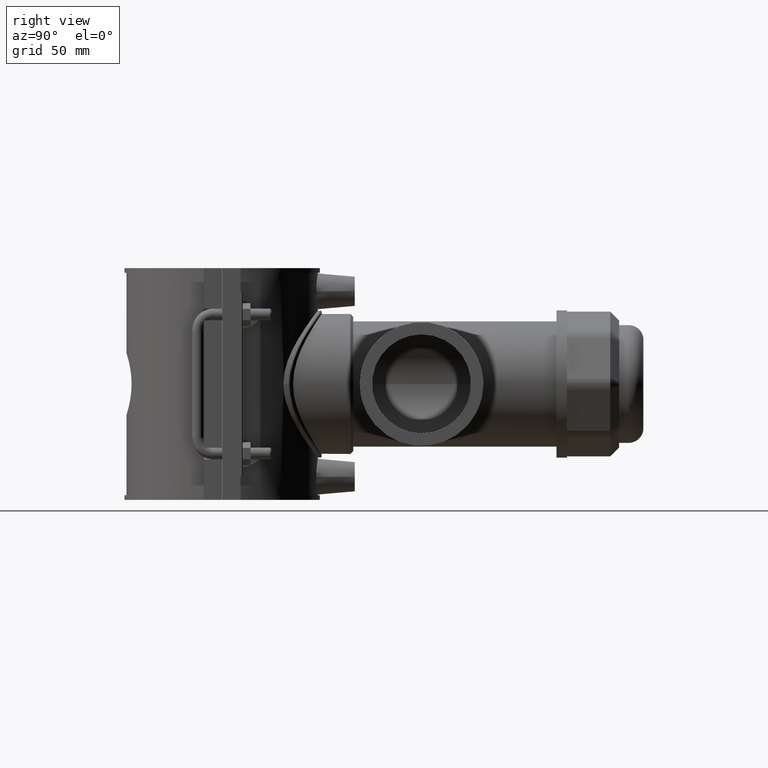
[diagram: clean part render]
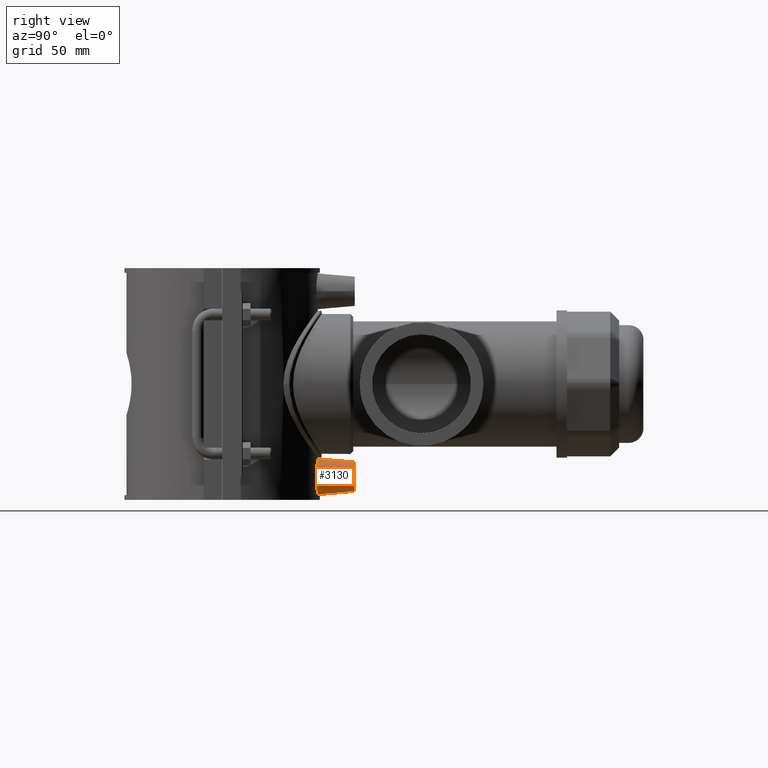
[diagram: same view with one face highlighted and labeled with its STEP entity id]
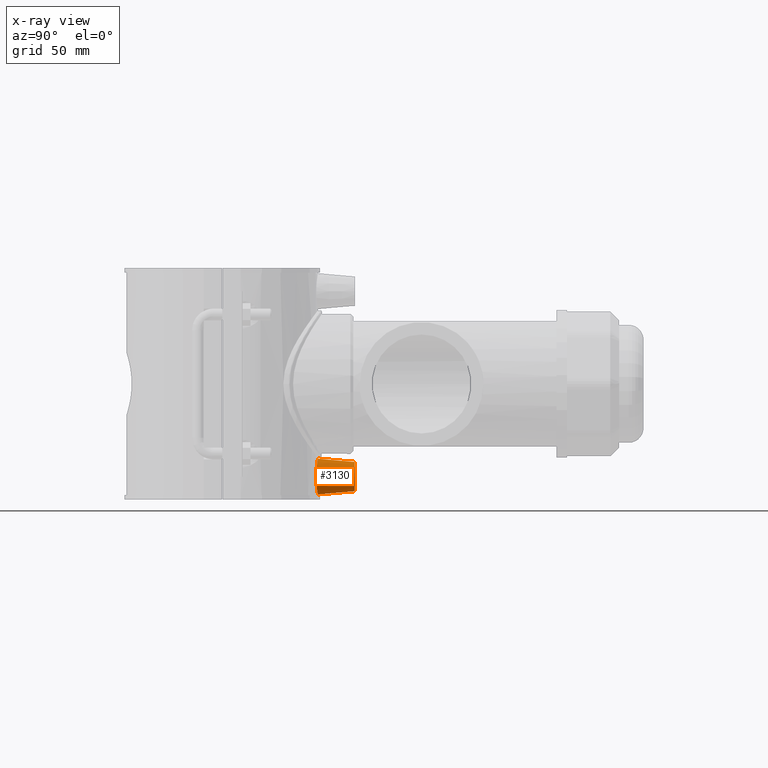
[diagram: x-ray of the same camera — body ghosted, the highlighted face saturated]
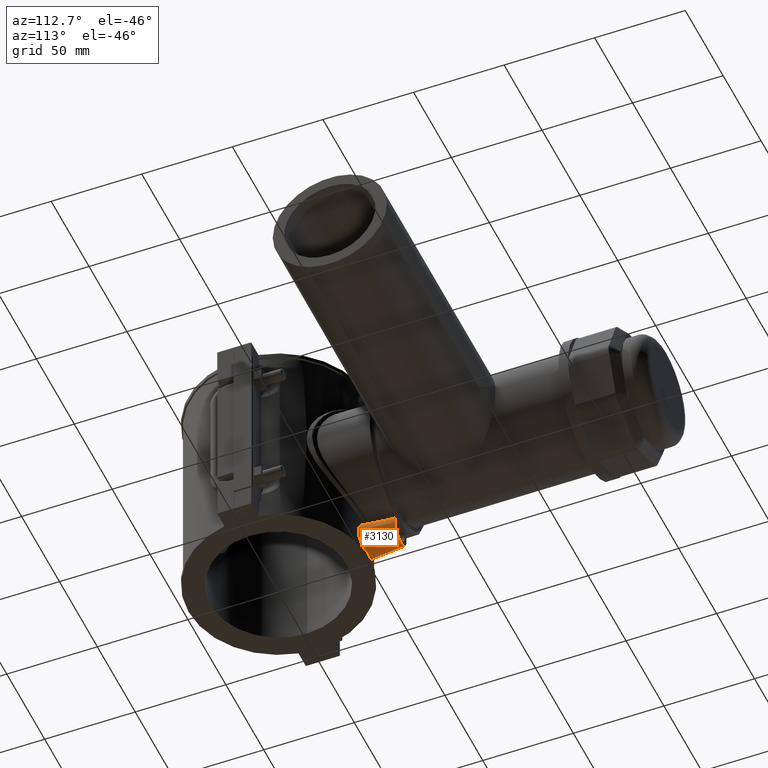
[diagram: same view with one face highlighted and labeled with its STEP entity id]
A machine part, right view. The second image highlights one B-rep face of the part: STEP entity #3130.
The next image is the same camera in x-ray: the body ghosted, the highlighted face saturated — about 0% of this face is hidden behind the body in this view.
A second angle (auxiliary view) of the same face is appended — the face is thin or edge-on in the first view.
In plain terms, the highlighted conical surface has half-angle 5 deg.
Its self-contained STEP definition (entity closure, byte-faithful):
#35=CONICAL_SURFACE('',#3386,7.5,5.);
#634=FACE_BOUND('',#1083,.T.);
#672=B_SPLINE_CURVE_WITH_KNOTS('',3,(#5412,#5413,#5414,#5415,#5416,#5417,
#5418,#5419,#5420,#5421,#5422,#5423,#5424,#5425,#5426,#5427,#5428,#5429,
#5430,#5431,#5432,#5433,#5434,#5435,#5436,#5437,#5438,#5439,#5440,#5441,
#5442,#5443,#5444,#5445),.UNSPECIFIED.,.T.,.F.,(4,2,2,2,2,2,2,2,2,2,2,2,
2,2,2,2,4),(0.,0.347008322146705,0.69401664429341,1.04032850766725,1.38664037104109,
1.73295223441493,2.07926409778876,2.42627241993547,2.77328074208217,3.12028906422888,
3.46729738637559,3.81360924974942,4.15992111312326,4.5062329764971,4.85254483987094,
5.19955316201765,5.54656148416435),.UNSPECIFIED.);
#861=FACE_OUTER_BOUND('',#1082,.T.);
#1082=EDGE_LOOP('',(#2515));
#1083=EDGE_LOOP('',(#2516));
#1254=CIRCLE('',#3385,7.5);
#1414=VERTEX_POINT('',#5411);
#1504=VERTEX_POINT('',#5976);
#1752=EDGE_CURVE('',#1414,#1414,#672,.T.);
#1876=EDGE_CURVE('',#1504,#1504,#1254,.T.);
#2515=ORIENTED_EDGE('',*,*,#1876,.T.);
#2516=ORIENTED_EDGE('',*,*,#1752,.F.);
#3130=ADVANCED_FACE('',(#861,#634),#35,.T.);
#3385=AXIS2_PLACEMENT_3D('',#5977,#4040,#4041);
#3386=AXIS2_PLACEMENT_3D('',#5978,#4042,#4043);
#4040=DIRECTION('center_axis',(0.,-1.,0.));
#4041=DIRECTION('ref_axis',(1.,0.,0.));
#4042=DIRECTION('center_axis',(0.,-1.,0.));
#4043=DIRECTION('ref_axis',(1.,0.,0.));
#5411=CARTESIAN_POINT('',(9.2173419643886,47.8706915253114,-47.2));
#5412=CARTESIAN_POINT('Ctrl Pts',(9.2173419643886,47.8706915253114,-47.2));
#5413=CARTESIAN_POINT('Ctrl Pts',(9.2173419643886,47.8706915253114,-46.0433055928443));
#5414=CARTESIAN_POINT('Ctrl Pts',(8.98234902795153,47.9177619174684,-44.8126981533247));
#5415=CARTESIAN_POINT('Ctrl Pts',(8.03380907708543,48.0858857389849,-42.5557666584694));
#5416=CARTESIAN_POINT('Ctrl Pts',(7.32047741248681,48.2043265249315,-41.5291582448232));
#5417=CARTESIAN_POINT('Ctrl Pts',(5.68282698567005,48.4246757336249,-39.9134295231966));
#5418=CARTESIAN_POINT('Ctrl Pts',(4.64904941468983,48.5410868257842,-39.2147463178761));
#5419=CARTESIAN_POINT('Ctrl Pts',(2.38492442190629,48.7048550538957,-38.2877707989113));
#5420=CARTESIAN_POINT('Ctrl Pts',(1.1543728779128,48.75,-38.0595875588889));
#5421=CARTESIAN_POINT('Ctrl Pts',(-1.1543728779128,48.75,-38.0595875588889));
#5422=CARTESIAN_POINT('Ctrl Pts',(-2.38492442190629,48.7048550538957,-38.2877707989113));
#5423=CARTESIAN_POINT('Ctrl Pts',(-4.64904941468984,48.5410868257842,-39.2147463178761));
#5424=CARTESIAN_POINT('Ctrl Pts',(-5.68282698567005,48.4246757336249,-39.9134295231966));
#5425=CARTESIAN_POINT('Ctrl Pts',(-7.32047741248681,48.2043265249315,-41.5291582448232));
#5426=CARTESIAN_POINT('Ctrl Pts',(-8.03380907708543,48.0858857389849,-42.5557666584694));
#5427=CARTESIAN_POINT('Ctrl Pts',(-8.98234902795153,47.9177619174684,-44.8126981533247));
#5428=CARTESIAN_POINT('Ctrl Pts',(-9.2173419643886,47.8706915253114,-46.0433055928443));
#5429=CARTESIAN_POINT('Ctrl Pts',(-9.2173419643886,47.8706915253114,-48.3566944071557));
#5430=CARTESIAN_POINT('Ctrl Pts',(-8.98234902795153,47.9177619174684,-49.5873018466754));
#5431=CARTESIAN_POINT('Ctrl Pts',(-8.03380907708542,48.0858857389849,-51.8442333415306));
#5432=CARTESIAN_POINT('Ctrl Pts',(-7.32047741248681,48.2043265249315,-52.8708417551769));
#5433=CARTESIAN_POINT('Ctrl Pts',(-5.68282698567005,48.4246757336249,-54.4865704768034));
#5434=CARTESIAN_POINT('Ctrl Pts',(-4.64904941468983,48.5410868257842,-55.1852536821239));
#5435=CARTESIAN_POINT('Ctrl Pts',(-2.38492442190628,48.7048550538957,-56.1122292010888));
#5436=CARTESIAN_POINT('Ctrl Pts',(-1.1543728779128,48.75,-56.3404124411111));
#5437=CARTESIAN_POINT('Ctrl Pts',(1.15437287791279,48.75,-56.3404124411111));
#5438=CARTESIAN_POINT('Ctrl Pts',(2.38492442190628,48.7048550538957,-56.1122292010888));
#5439=CARTESIAN_POINT('Ctrl Pts',(4.64904941468983,48.5410868257842,-55.1852536821239));
#5440=CARTESIAN_POINT('Ctrl Pts',(5.68282698567004,48.4246757336249,-54.4865704768034));
#5441=CARTESIAN_POINT('Ctrl Pts',(7.32047741248681,48.2043265249315,-52.8708417551769));
#5442=CARTESIAN_POINT('Ctrl Pts',(8.03380907708543,48.0858857389849,-51.8442333415306));
#5443=CARTESIAN_POINT('Ctrl Pts',(8.98234902795153,47.9177619174684,-49.5873018466754));
#5444=CARTESIAN_POINT('Ctrl Pts',(9.2173419643886,47.8706915253114,-48.3566944071557));
#5445=CARTESIAN_POINT('Ctrl Pts',(9.2173419643886,47.8706915253114,-47.2));
#5976=CARTESIAN_POINT('',(-7.5,67.5,-47.2));
#5977=CARTESIAN_POINT('Origin',(0.,67.5,-47.2));
#5978=CARTESIAN_POINT('Origin',(0.,67.5,-47.2));